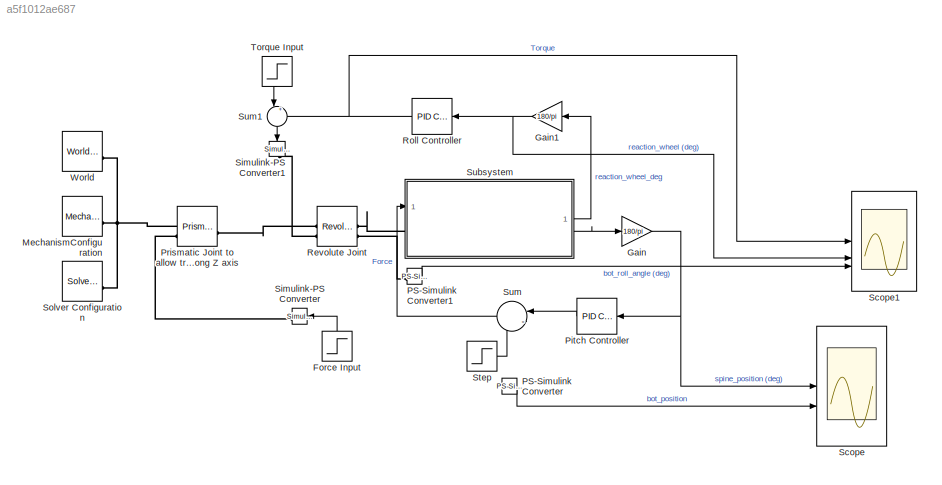
MODEL slx_a5f1012ae687
KIND model
CONFIG AbsTol = auto
CONFIG EnableMultiTasking = off
CONFIG FixedStep = auto
CONFIG MaxStep = auto
CONFIG MinStep = auto
CONFIG RelTol = 1e-3
CONFIG SampleTimeConstraint = Unconstrained
CONFIG SolverName = VariableStepAuto
CONFIG StartTime = 0.0
CONFIG StopTime = 1
WORKSPACE source: external: MATLAB File  (data not in archive)
BLOCK [Step] Force Input
  After = 0.2
  NameLocation = right
  SampleTime = 0
  Time = 0.001
BLOCK [Gain] Gain
  Gain = 180/pi
BLOCK [Gain] Gain1
  Gain = 180/pi
  NameLocation = top
BLOCK [Reference] MechanismConfiguration  REF=sm_lib/Utilities/Mechanism
Configuration
  SourceBlock = sm_lib/Utilities/Mechanism\nConfiguration
  SourceType = Mechanism\nConfiguration
BLOCK [Reference] PS-Simulink Converter  REF=nesl_utility/PS-Simulink
Converter
  SourceBlock = nesl_utility/PS-Simulink\nConverter
  SourceType = PS-Simulink\nConverter
BLOCK [Reference] PS-Simulink Converter1  REF=nesl_utility/PS-Simulink
Converter
  SourceBlock = nesl_utility/PS-Simulink\nConverter
  SourceType = PS-Simulink\nConverter
BLOCK [Reference] Pitch Controller  REF=slpidlib/PID Controller
  LibrarySourceBlock = simulink/Continuous/PID Controller
  NameLocation = top
  SourceBlock = slpidlib/PID Controller
  SourceType = PID 1dof
BLOCK [Reference] Prismatic Joint to allow translation along Z axis  REF=sm_lib/Joints/Prismatic
Joint
  SourceBlock = sm_lib/Joints/Prismatic\nJoint
  SourceType = Prismatic\nJoint
BLOCK [Reference] Revolute Joint  REF=sm_lib/Joints/Revolute Joint
  SourceBlock = sm_lib/Joints/Revolute Joint
  SourceType = Revolute Joint
BLOCK [Reference] Roll Controller  REF=slpidlib/PID Controller
  LibrarySourceBlock = simulink/Continuous/PID Controller
  NameLocation = top
  SourceBlock = slpidlib/PID Controller
  SourceType = PID 1dof
BLOCK [Scope] Scope
  Floating = off
  NumInputPorts = 3
  ScopeSpecificationString = Simulink.scopes.TimeScopeBlockCfg('CurrentConfiguration', extmgr.ConfigurationSet(extmgr.Configuration('Core','General UI',true),extmgr.Configuration('Core','Source UI',true),extmgr.Configuration('Sources','WiredSimulink',true),extmgr.Configuration('Visuals','Time Domain',true,'SerializedDisplays',{struct('MinYLimReal','-0.94996','MaxYLimReal','0.55373','YLabelReal','','MinYLimMag','0.00000','MaxY...<+1488ch>
BLOCK [Scope] Scope1
  Floating = off
  NumInputPorts = 3
  ScopeSpecificationString = Simulink.scopes.TimeScopeBlockCfg('CurrentConfiguration', extmgr.ConfigurationSet(extmgr.Configuration('Core','General UI',true),extmgr.Configuration('Core','Source UI',true),extmgr.Configuration('Sources','WiredSimulink',true,'DataLoggingVariableName','ScopeData2'),extmgr.Configuration('Visuals','Time Domain',true,'SerializedDisplays',{struct('MinYLimReal','-1.05335','MaxYLimReal','6.47043','YLab...<+1449ch>
BLOCK [Reference] Simulink-PS Converter  REF=nesl_utility/Simulink-PS
Converter
  NameLocation = top
  SourceBlock = nesl_utility/Simulink-PS\nConverter
  SourceType = Simulink-PS\nConverter
BLOCK [Reference] Simulink-PS Converter1  REF=nesl_utility/Simulink-PS
Converter
  NameLocation = left
  SourceBlock = nesl_utility/Simulink-PS\nConverter
  SourceType = Simulink-PS\nConverter
BLOCK [Reference] Solver Configuration  REF=nesl_utility/Solver
Configuration
  SourceBlock = nesl_utility/Solver\nConfiguration
  SourceType = Solver\nConfiguration
BLOCK [Step] Step
  SampleTime = 0
  Time = 0.001
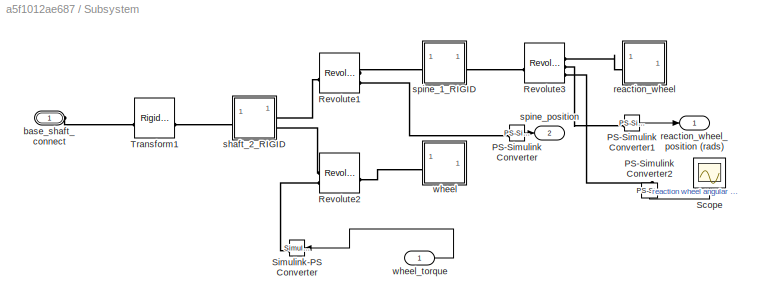
BLOCK [SubSystem] Subsystem
  PortSchema = {"entries":[{"content":{"sides":[{"content":{"connectorIds":["LConn1","In1"]},"type":"ConnectorPlacement.EquallySpacedRectSide","uuid":"386071f8-202d-476a-a86d-97f1b1745425"},{"content":{"connectorIds":["Out1","Out2"],"side":"RIGHT"},"type":"ConnectorPlacement.EquallySpacedRectSide","uuid":"59e52ab3-9f97-4bd0-a712-4c15e3fb922c"},{"content":{"connectorIds":[],"side":"TOP"},"type":"ConnectorPlacemen...<+256ch>
BLOCK [Reference] Subsystem/PS-Simulink Converter  REF=nesl_utility/PS-Simulink
Converter
  SourceBlock = nesl_utility/PS-Simulink\nConverter
  SourceType = PS-Simulink\nConverter
BLOCK [Reference] Subsystem/PS-Simulink Converter1  REF=nesl_utility/PS-Simulink
Converter
  SourceBlock = nesl_utility/PS-Simulink\nConverter
  SourceType = PS-Simulink\nConverter
BLOCK [Reference] Subsystem/PS-Simulink Converter2  REF=nesl_utility/PS-Simulink
Converter
  NameLocation = left
  SourceBlock = nesl_utility/PS-Simulink\nConverter
  SourceType = PS-Simulink\nConverter
BLOCK [Reference] Subsystem/Revolute1  REF=sm_lib/Joints/Revolute Joint
  SourceBlock = sm_lib/Joints/Revolute Joint
  SourceType = Revolute Joint
BLOCK [Reference] Subsystem/Revolute2  REF=sm_lib/Joints/Revolute Joint
  SourceBlock = sm_lib/Joints/Revolute Joint
  SourceType = Revolute Joint
BLOCK [Reference] Subsystem/Revolute3  REF=sm_lib/Joints/Revolute Joint
  SourceBlock = sm_lib/Joints/Revolute Joint
  SourceType = Revolute Joint
BLOCK [Scope] Subsystem/Scope
  Floating = off
  NameLocation = right
  NumInputPorts = 1
  ScopeSpecificationString = Simulink.scopes.TimeScopeBlockCfg('CurrentConfiguration', extmgr.ConfigurationSet(extmgr.Configuration('Core','General UI',true),extmgr.Configuration('Core','Source UI',true),extmgr.Configuration('Sources','WiredSimulink',true,'DataLoggingVariableName','ScopeData1'),extmgr.Configuration('Visuals','Time Domain',true,'SerializedDisplays',{struct('MinYLimReal','-0.74138','MaxYLimReal','0.13881','YLab...<+1416ch>
BLOCK [Reference] Subsystem/Simulink-PS Converter  REF=nesl_utility/Simulink-PS
Converter
  NameLocation = top
  SourceBlock = nesl_utility/Simulink-PS\nConverter
  SourceType = Simulink-PS\nConverter
BLOCK [Reference] Subsystem/Transform1  REF=sm_lib/Frames and
Transforms/Rigid
Transform
  SourceBlock = sm_lib/Frames and\nTransforms/Rigid\nTransform
  SourceType = Rigid\nTransform
BLOCK [PMIOPort] Subsystem/base_shaft_connect
  Side = Left
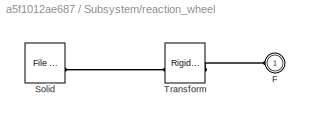
BLOCK [SubSystem] Subsystem/reaction_wheel
BLOCK [PMIOPort] Subsystem/reaction_wheel/F
  Side = Left
BLOCK [Reference] Subsystem/reaction_wheel/Solid  REF=sm_lib/Body Elements/File Solid
  SourceBlock = sm_lib/Body Elements/File Solid
  SourceType = File Solid
BLOCK [Reference] Subsystem/reaction_wheel/Transform  REF=sm_lib/Frames and
Transforms/Rigid
Transform
  SourceBlock = sm_lib/Frames and\nTransforms/Rigid\nTransform
  SourceType = Rigid\nTransform
BLOCK [Outport] Subsystem/reaction_wheel_position (rads)
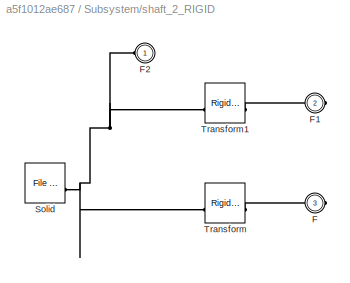
BLOCK [SubSystem] Subsystem/shaft_2_RIGID
BLOCK [PMIOPort] Subsystem/shaft_2_RIGID/F
  Port = 3
  Side = Right
BLOCK [PMIOPort] Subsystem/shaft_2_RIGID/F1
  Port = 2
  Side = Right
BLOCK [PMIOPort] Subsystem/shaft_2_RIGID/F2
  Side = Left
BLOCK [Reference] Subsystem/shaft_2_RIGID/Solid  REF=sm_lib/Body Elements/File Solid
  SourceBlock = sm_lib/Body Elements/File Solid
  SourceType = File Solid
BLOCK [Reference] Subsystem/shaft_2_RIGID/Transform  REF=sm_lib/Frames and
Transforms/Rigid
Transform
  SourceBlock = sm_lib/Frames and\nTransforms/Rigid\nTransform
  SourceType = Rigid\nTransform
BLOCK [Reference] Subsystem/shaft_2_RIGID/Transform1  REF=sm_lib/Frames and
Transforms/Rigid
Transform
  SourceBlock = sm_lib/Frames and\nTransforms/Rigid\nTransform
  SourceType = Rigid\nTransform
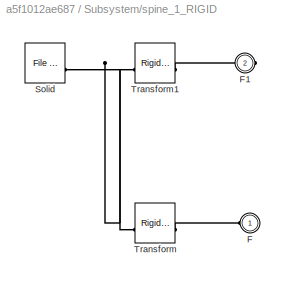
BLOCK [SubSystem] Subsystem/spine_1_RIGID
BLOCK [PMIOPort] Subsystem/spine_1_RIGID/F
  Side = Left
BLOCK [PMIOPort] Subsystem/spine_1_RIGID/F1
  Port = 2
  Side = Right
BLOCK [Reference] Subsystem/spine_1_RIGID/Solid  REF=sm_lib/Body Elements/File Solid
  SourceBlock = sm_lib/Body Elements/File Solid
  SourceType = File Solid
BLOCK [Reference] Subsystem/spine_1_RIGID/Transform  REF=sm_lib/Frames and
Transforms/Rigid
Transform
  SourceBlock = sm_lib/Frames and\nTransforms/Rigid\nTransform
  SourceType = Rigid\nTransform
BLOCK [Reference] Subsystem/spine_1_RIGID/Transform1  REF=sm_lib/Frames and
Transforms/Rigid
Transform
  SourceBlock = sm_lib/Frames and\nTransforms/Rigid\nTransform
  SourceType = Rigid\nTransform
BLOCK [Outport] Subsystem/spine_position
  Port = 2
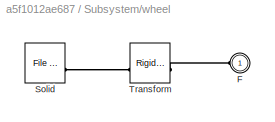
BLOCK [SubSystem] Subsystem/wheel
BLOCK [PMIOPort] Subsystem/wheel/F
  Side = Left
BLOCK [Reference] Subsystem/wheel/Solid  REF=sm_lib/Body Elements/File Solid
  SourceBlock = sm_lib/Body Elements/File Solid
  SourceType = File Solid
BLOCK [Reference] Subsystem/wheel/Transform  REF=sm_lib/Frames and
Transforms/Rigid
Transform
  SourceBlock = sm_lib/Frames and\nTransforms/Rigid\nTransform
  SourceType = Rigid\nTransform
BLOCK [Inport] Subsystem/wheel_torque
BLOCK [Sum] Sum
  Inputs = |-+
  NameLocation = top
BLOCK [Sum] Sum1
  Inputs = |+-
  NameLocation = left
BLOCK [Step] Torque Input
  After = 5
  NameLocation = top
  SampleTime = 0
  Time = 0.01
BLOCK [Reference] World  REF=sm_lib/Frames and
Transforms/World Frame
  SourceBlock = sm_lib/Frames and\nTransforms/World Frame
  SourceType = World Frame
LINE Force Input:1 -> Simulink-PS Converter:1
NET Gain1:1 -> Roll Controller:1, Scope1:2
NET Gain:1 -> Pitch Controller:1, Scope:1
LINE PS-Simulink Converter1:1 -> Scope1:3
LINE PS-Simulink Converter:1 -> Scope:2
LINE Pitch Controller:1 -> Sum:1
NET Roll Controller:1 -> Scope1:1, Sum1:2
LINE Step:1 -> Sum:2
LINE Subsystem/PS-Simulink Converter1:1 -> Subsystem/reaction_wheel_position (rads):1
LINE Subsystem/PS-Simulink Converter2:1 -> Subsystem/Scope:1
LINE Subsystem/PS-Simulink Converter:1 -> Subsystem/spine_position:1
LINE Subsystem/wheel_torque:1 -> Subsystem/Simulink-PS Converter:1
LINE Subsystem:1 -> Gain1:1
LINE Subsystem:2 -> Gain:1
LINE Sum1:1 -> Simulink-PS Converter1:1
LINE Sum:1 -> Subsystem:1
LINE Torque Input:1 -> Sum1:1
PNET net1: MechanismConfiguration:RConn1 -- Prismatic Joint to allow translation along Z axis:LConn1 -- Solver Configuration:RConn1 -- World:RConn1
PLINE PS-Simulink Converter1:LConn1 -- Revolute Joint:RConn2
PLINE Prismatic Joint to allow translation along Z axis:LConn2 -- Simulink-PS Converter:RConn1
PLINE Prismatic Joint to allow translation along Z axis:RConn1 -- Revolute Joint:LConn1
PLINE Revolute Joint:LConn2 -- Simulink-PS Converter1:RConn1
PLINE Revolute Joint:RConn1 -- Subsystem:LConn1
PLINE Subsystem/PS-Simulink Converter1:LConn1 -- Subsystem/Revolute3:RConn2
PLINE Subsystem/PS-Simulink Converter2:LConn1 -- Subsystem/Revolute3:RConn3
PLINE Subsystem/PS-Simulink Converter:LConn1 -- Subsystem/Revolute1:RConn2
PLINE Subsystem/Revolute1:LConn1 -- Subsystem/shaft_2_RIGID:RConn1
PLINE Subsystem/Revolute1:RConn1 -- Subsystem/spine_1_RIGID:LConn1
PLINE Subsystem/Revolute2:LConn1 -- Subsystem/shaft_2_RIGID:RConn2
PLINE Subsystem/Revolute2:LConn2 -- Subsystem/Simulink-PS Converter:RConn1
PLINE Subsystem/Revolute2:RConn1 -- Subsystem/wheel:LConn1
PLINE Subsystem/Revolute3:LConn1 -- Subsystem/spine_1_RIGID:RConn1
PLINE Subsystem/Revolute3:RConn1 -- Subsystem/reaction_wheel:LConn1
PLINE Subsystem/Transform1:LConn1 -- Subsystem/base_shaft_connect:RConn1
PLINE Subsystem/Transform1:RConn1 -- Subsystem/shaft_2_RIGID:LConn1
PLINE Subsystem/reaction_wheel/F:RConn1 -- Subsystem/reaction_wheel/Transform:RConn1
PLINE Subsystem/reaction_wheel/Solid:RConn1 -- Subsystem/reaction_wheel/Transform:LConn1
PLINE Subsystem/shaft_2_RIGID/F1:RConn1 -- Subsystem/shaft_2_RIGID/Transform1:RConn1
PNET net2: Subsystem/shaft_2_RIGID/F2:RConn1 -- Subsystem/shaft_2_RIGID/Solid:RConn1 -- Subsystem/shaft_2_RIGID/Transform1:LConn1 -- Subsystem/shaft_2_RIGID/Transform:LConn1
PLINE Subsystem/shaft_2_RIGID/F:RConn1 -- Subsystem/shaft_2_RIGID/Transform:RConn1
PLINE Subsystem/spine_1_RIGID/F1:RConn1 -- Subsystem/spine_1_RIGID/Transform1:RConn1
PLINE Subsystem/spine_1_RIGID/F:RConn1 -- Subsystem/spine_1_RIGID/Transform:RConn1
PNET net3: Subsystem/spine_1_RIGID/Solid:RConn1 -- Subsystem/spine_1_RIGID/Transform1:LConn1 -- Subsystem/spine_1_RIGID/Transform:LConn1
PLINE Subsystem/wheel/F:RConn1 -- Subsystem/wheel/Transform:RConn1
PLINE Subsystem/wheel/Solid:RConn1 -- Subsystem/wheel/Transform:LConn1
note: NET lines group one-source signal fan-out (src -> all destinations, sorted); 1:1 wires keep LINE; PNET lines group multi-terminal physical nets as a canonical sorted terminal list (undirected conserving connections); 2-terminal nets keep the pairwise PLINE form
